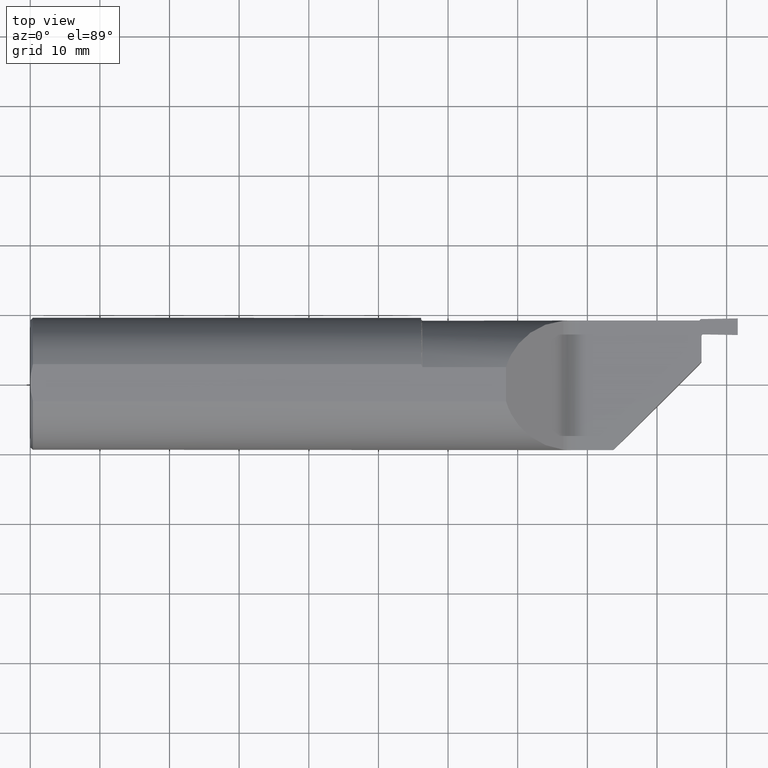
[diagram: clean part render]
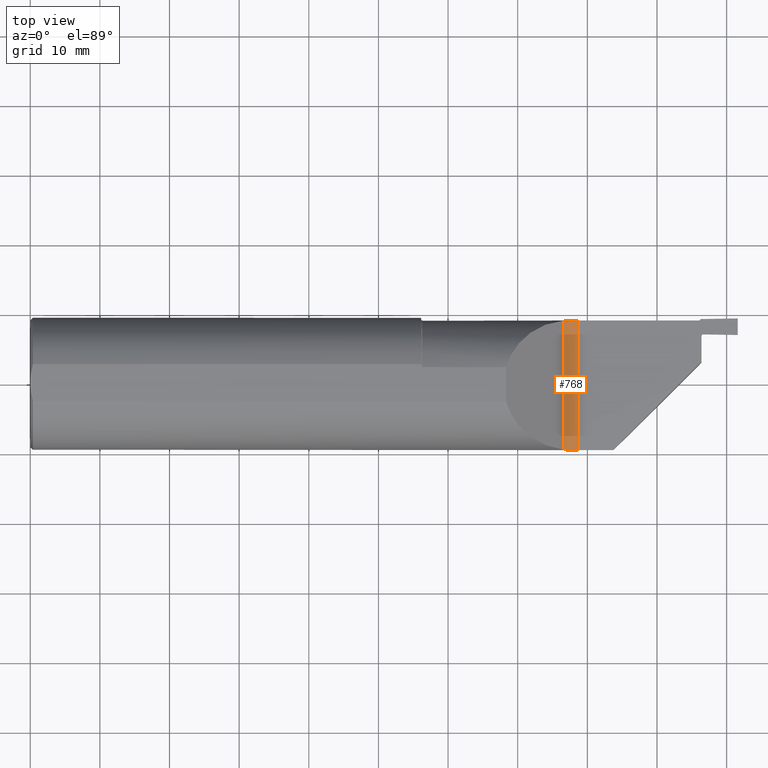
[diagram: same view with one face highlighted and labeled with its STEP entity id]
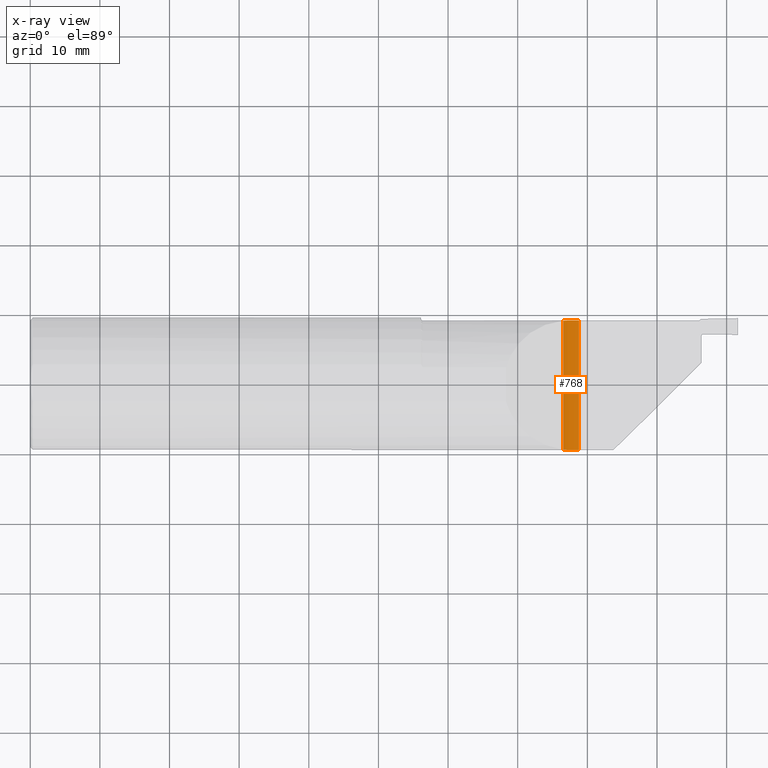
[diagram: x-ray of the same camera — body ghosted, the highlighted face saturated]
A machine part, top view. The second image highlights one B-rep face of the part: STEP entity #768.
The next image is the same camera in x-ray: the body ghosted, the highlighted face saturated — about 0% of this face is hidden behind the body in this view.
In plain terms, the highlighted cylindrical surface (edge-blend (fillet) strip) has radius 3.175 mm, axis along (0, -1, 0).
Its self-contained STEP definition (entity closure, byte-faithful):
#15 = CARTESIAN_POINT ( 'NONE',  ( 3.093373952877382038, -0.3748500000000000165, 2.250973383451388219E-19 ) ) ;
#41 = DIRECTION ( 'NONE',  ( 0.000000000000000000, 0.000000000000000000, -1.000000000000000000 ) ) ;
#54 = CARTESIAN_POINT ( 'NONE',  ( 3.025361822505243659, 0.3569999263830916925, 0.02562779885089322071 ) ) ;
#61 = EDGE_CURVE ( 'NONE', #62, #606, #572, .T. ) ;
#62 = VERTEX_POINT ( 'NONE', #248 ) ;
#119 = CARTESIAN_POINT ( 'NONE',  ( 3.019060571484214250, 0.3566289001983811158, 0.03078942851578016573 ) ) ;
#159 = CARTESIAN_POINT ( 'NONE',  ( 3.069292917219418104, -0.3748322207226623681, 0.003980296266681139332 ) ) ;
#217 = VERTEX_POINT ( 'NONE', #873 ) ;
#220 = ORIENTED_EDGE ( 'NONE', *, *, #795, .F. ) ;
#235 = ORIENTED_EDGE ( 'NONE', *, *, #735, .F. ) ;
#248 = CARTESIAN_POINT ( 'NONE',  ( 3.101626695296630487, -0.3748500000000000165, 0.000000000000000000 ) ) ;
#293 = DIRECTION ( 'NONE',  ( 0.000000000000000000, -1.000000000000000000, 0.000000000000000000 ) ) ;
#305 = CARTESIAN_POINT ( 'NONE',  ( 3.038883473395751267, 0.3575098277672587033, 0.01658204351399127086 ) ) ;
#340 = CARTESIAN_POINT ( 'NONE',  ( 3.046230871488964542, -0.3746497198372802373, 0.01264638996857846837 ) ) ;
#346 = VECTOR ( 'NONE', #707, 39.37007874015748143 ) ;
#350 = EDGE_CURVE ( 'NONE', #217, #62, #905, .T. ) ;
#365 = CARTESIAN_POINT ( 'NONE',  ( 3.085114159819533963, 0.3578517493328192689, 0.0008266118192357160398 ) ) ;
#383 = CARTESIAN_POINT ( 'NONE',  ( 3.069098199700243779, 0.3578309987608568332, 0.004030619021138301221 ) ) ;
#424 = CARTESIAN_POINT ( 'NONE',  ( 3.085258887130427841, -0.3748524796876536169, 0.0008092726799575582350 ) ) ;
#466 = AXIS2_PLACEMENT_3D ( 'NONE', #709, #293, #41 ) ;
#483 = LINE ( 'NONE', #492, #346 ) ;
#491 = CARTESIAN_POINT ( 'NONE',  ( 3.013238347648311333, 0.3560577416285020114, 0.03661165235168205301 ) ) ;
#492 = CARTESIAN_POINT ( 'NONE',  ( 3.013238347648311777, 0.4748500000000000498, 0.03661165235168222648 ) ) ;
#505 = CARTESIAN_POINT ( 'NONE',  ( 3.019060788966111186, -0.3736291936090687660, 0.03078921103388285868 ) ) ;
#553 = CARTESIAN_POINT ( 'NONE',  ( 3.101626695296630487, 0.3578492383597801640, 0.000000000000000000 ) ) ;
#569 = VECTOR ( 'NONE', #969, 39.37007874015748143 ) ;
#572 = B_SPLINE_CURVE_WITH_KNOTS ( 'NONE', 3,
 ( #1034, #15, #424, #159, #641, #340, #658, #959, #505, #743 ),
 .UNSPECIFIED., .F., .F.,
 ( 4, 2, 2, 2, 4 ),
 ( 0.000000000000000000, 0.0006199503241697987234, 0.001239900648339597447, 0.001859850972509396062, 0.002479801296679194893 ),
 .UNSPECIFIED. ) ;
#598 = CARTESIAN_POINT ( 'NONE',  ( 3.046190358149832189, 0.3576483765745644972, 0.01266651274399054235 ) ) ;
#606 = VERTEX_POINT ( 'NONE', #732 ) ;
#613 = ORIENTED_EDGE ( 'NONE', *, *, #61, .F. ) ;
#641 = CARTESIAN_POINT ( 'NONE',  ( 3.061359130489499147, -0.3748087929528916562, 0.006380633086640449293 ) ) ;
#658 = CARTESIAN_POINT ( 'NONE',  ( 3.039056212294848791, -0.3745149928354791768, 0.01648038711453193861 ) ) ;
#669 = CARTESIAN_POINT ( 'NONE',  ( 3.101626695296630487, -0.4748500000000000498, 0.000000000000000000 ) ) ;
#683 = VERTEX_POINT ( 'NONE', #491 ) ;
#707 = DIRECTION ( 'NONE',  ( -0.000000000000000000, 1.000000000000000000, -0.000000000000000000 ) ) ;
#709 = CARTESIAN_POINT ( 'NONE',  ( 3.101626695296630487, -0.4748500000000000498, 0.1250000000000000000 ) ) ;
#729 = B_SPLINE_CURVE_WITH_KNOTS ( 'NONE', 3,
 ( #784, #119, #54, #305, #598, #944, #383, #365, #916, #553 ),
 .UNSPECIFIED., .F., .F.,
 ( 4, 2, 2, 2, 4 ),
 ( 0.000000000000000000, 0.0006198654333269901099, 0.001239730866653980220, 0.001859596299980970438, 0.002479461733307960439 ),
 .UNSPECIFIED. ) ;
#732 = CARTESIAN_POINT ( 'NONE',  ( 3.013238347648311777, -0.3730577829399617240, 0.03661165235168221260 ) ) ;
#735 = EDGE_CURVE ( 'NONE', #683, #217, #729, .T. ) ;
#743 = CARTESIAN_POINT ( 'NONE',  ( 3.013238347648311777, -0.3730577829399617240, 0.03661165235168221260 ) ) ;
#768 = ADVANCED_FACE ( 'NONE', ( #924 ), #996, .F. ) ;
#784 = CARTESIAN_POINT ( 'NONE',  ( 3.013238347648311333, 0.3560577416285020114, 0.03661165235168205301 ) ) ;
#795 = EDGE_CURVE ( 'NONE', #606, #683, #483, .T. ) ;
#873 = CARTESIAN_POINT ( 'NONE',  ( 3.101626695296630487, 0.3578492383597801640, 0.000000000000000000 ) ) ;
#905 = LINE ( 'NONE', #669, #569 ) ;
#916 = CARTESIAN_POINT ( 'NONE',  ( 3.093374821991286439, 0.3578492383597802196, -5.002163074336419804E-18 ) ) ;
#924 = FACE_OUTER_BOUND ( 'NONE', #1002, .T. ) ;
#944 = CARTESIAN_POINT ( 'NONE',  ( 3.061312743841987594, 0.3578077948251029428, 0.006396521326471136214 ) ) ;
#959 = CARTESIAN_POINT ( 'NONE',  ( 3.025480383452218813, -0.3740067554628414004, 0.02553487587912179127 ) ) ;
#969 = DIRECTION ( 'NONE',  ( 0.000000000000000000, -1.000000000000000000, 0.000000000000000000 ) ) ;
#996 = CYLINDRICAL_SURFACE ( 'NONE', #466, 0.1250000000000000000 ) ;
#1002 = EDGE_LOOP ( 'NONE', ( #235, #220, #613, #1008 ) ) ;
#1008 = ORIENTED_EDGE ( 'NONE', *, *, #350, .F. ) ;
#1034 = CARTESIAN_POINT ( 'NONE',  ( 3.101626695296630487, -0.3748500000000000165, 0.000000000000000000 ) ) ;